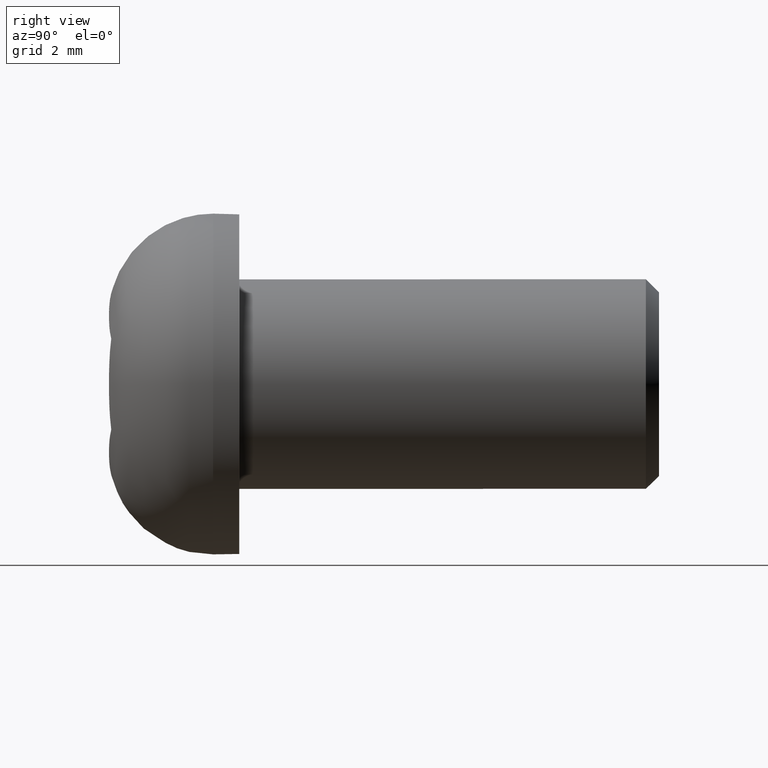
[diagram: clean part render]
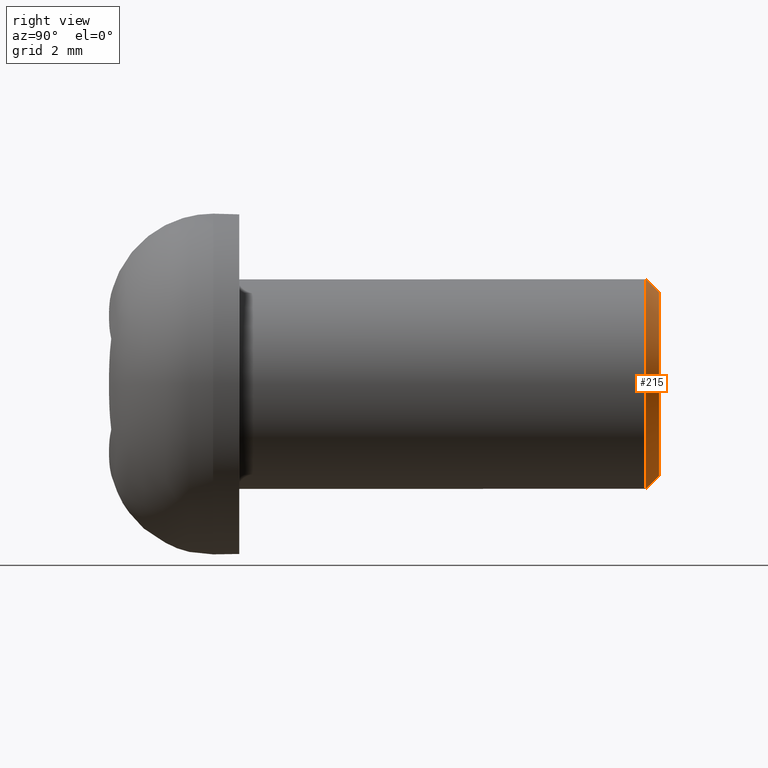
[diagram: same view with one face highlighted and labeled with its STEP entity id]
A machine part, right view. The second image highlights one B-rep face of the part: STEP entity #215.
In plain terms, the highlighted conical surface has half-angle 45 deg.
Its self-contained STEP definition (entity closure, byte-faithful):
#15=CONICAL_SURFACE('',#256,3.94999999998429,0.785398163397675);
#28=LINE('',#417,#43);
#43=VECTOR('',#292,3.94999999998429);
#62=FACE_OUTER_BOUND('',#76,.T.);
#76=EDGE_LOOP('',(#173,#174,#175,#176,#177));
#89=CIRCLE('',#254,3.99999999998409);
#90=CIRCLE('',#255,3.99999999998409);
#91=CIRCLE('',#257,3.49999999998613);
#111=VERTEX_POINT('',#409);
#112=VERTEX_POINT('',#410);
#113=VERTEX_POINT('',#415);
#133=EDGE_CURVE('',#111,#112,#89,.T.);
#135=EDGE_CURVE('',#112,#111,#90,.T.);
#136=EDGE_CURVE('',#113,#113,#91,.T.);
#137=EDGE_CURVE('',#113,#112,#28,.T.);
#173=ORIENTED_EDGE('',*,*,#136,.F.);
#174=ORIENTED_EDGE('',*,*,#137,.T.);
#175=ORIENTED_EDGE('',*,*,#135,.T.);
#176=ORIENTED_EDGE('',*,*,#133,.T.);
#177=ORIENTED_EDGE('',*,*,#137,.F.);
#215=ADVANCED_FACE('',(#62),#15,.T.);
#254=AXIS2_PLACEMENT_3D('',#411,#283,#284);
#255=AXIS2_PLACEMENT_3D('',#413,#286,#287);
#256=AXIS2_PLACEMENT_3D('',#414,#288,#289);
#257=AXIS2_PLACEMENT_3D('',#416,#290,#291);
#283=DIRECTION('center_axis',(0.,1.,0.));
#284=DIRECTION('ref_axis',(1.,0.,0.));
#286=DIRECTION('center_axis',(0.,1.,0.));
#287=DIRECTION('ref_axis',(1.,0.,0.));
#288=DIRECTION('center_axis',(-5.60707097042313E-17,-1.,-7.60126447506034E-16));
#289=DIRECTION('ref_axis',(0.813826036051075,3.96084197960991E-16,-0.581108581114919));
#290=DIRECTION('center_axis',(0.,1.,0.));
#291=DIRECTION('ref_axis',(1.,0.,0.));
#292=DIRECTION('',(-0.575461908798013,-0.707106781186388,0.410905818312145));
#409=CARTESIAN_POINT('',(-3.99999999998409,15.4999999999382,0.));
#410=CARTESIAN_POINT('',(-3.25530414419134,15.4999999999381,2.32443432445043));
#411=CARTESIAN_POINT('Origin',(0.,15.4999999999382,0.));
#413=CARTESIAN_POINT('Origin',(0.,15.4999999999382,0.));
#414=CARTESIAN_POINT('Origin',(2.22044604925031E-15,15.5499999999379,-2.77555756156289E-16));
#415=CARTESIAN_POINT('',(-2.84839112616747,15.9999999999359,2.03388003389416));
#416=CARTESIAN_POINT('Origin',(0.,15.9999999999359,0.));
#417=CARTESIAN_POINT('',(-3.21461284238896,15.5499999999379,2.2953788953948));